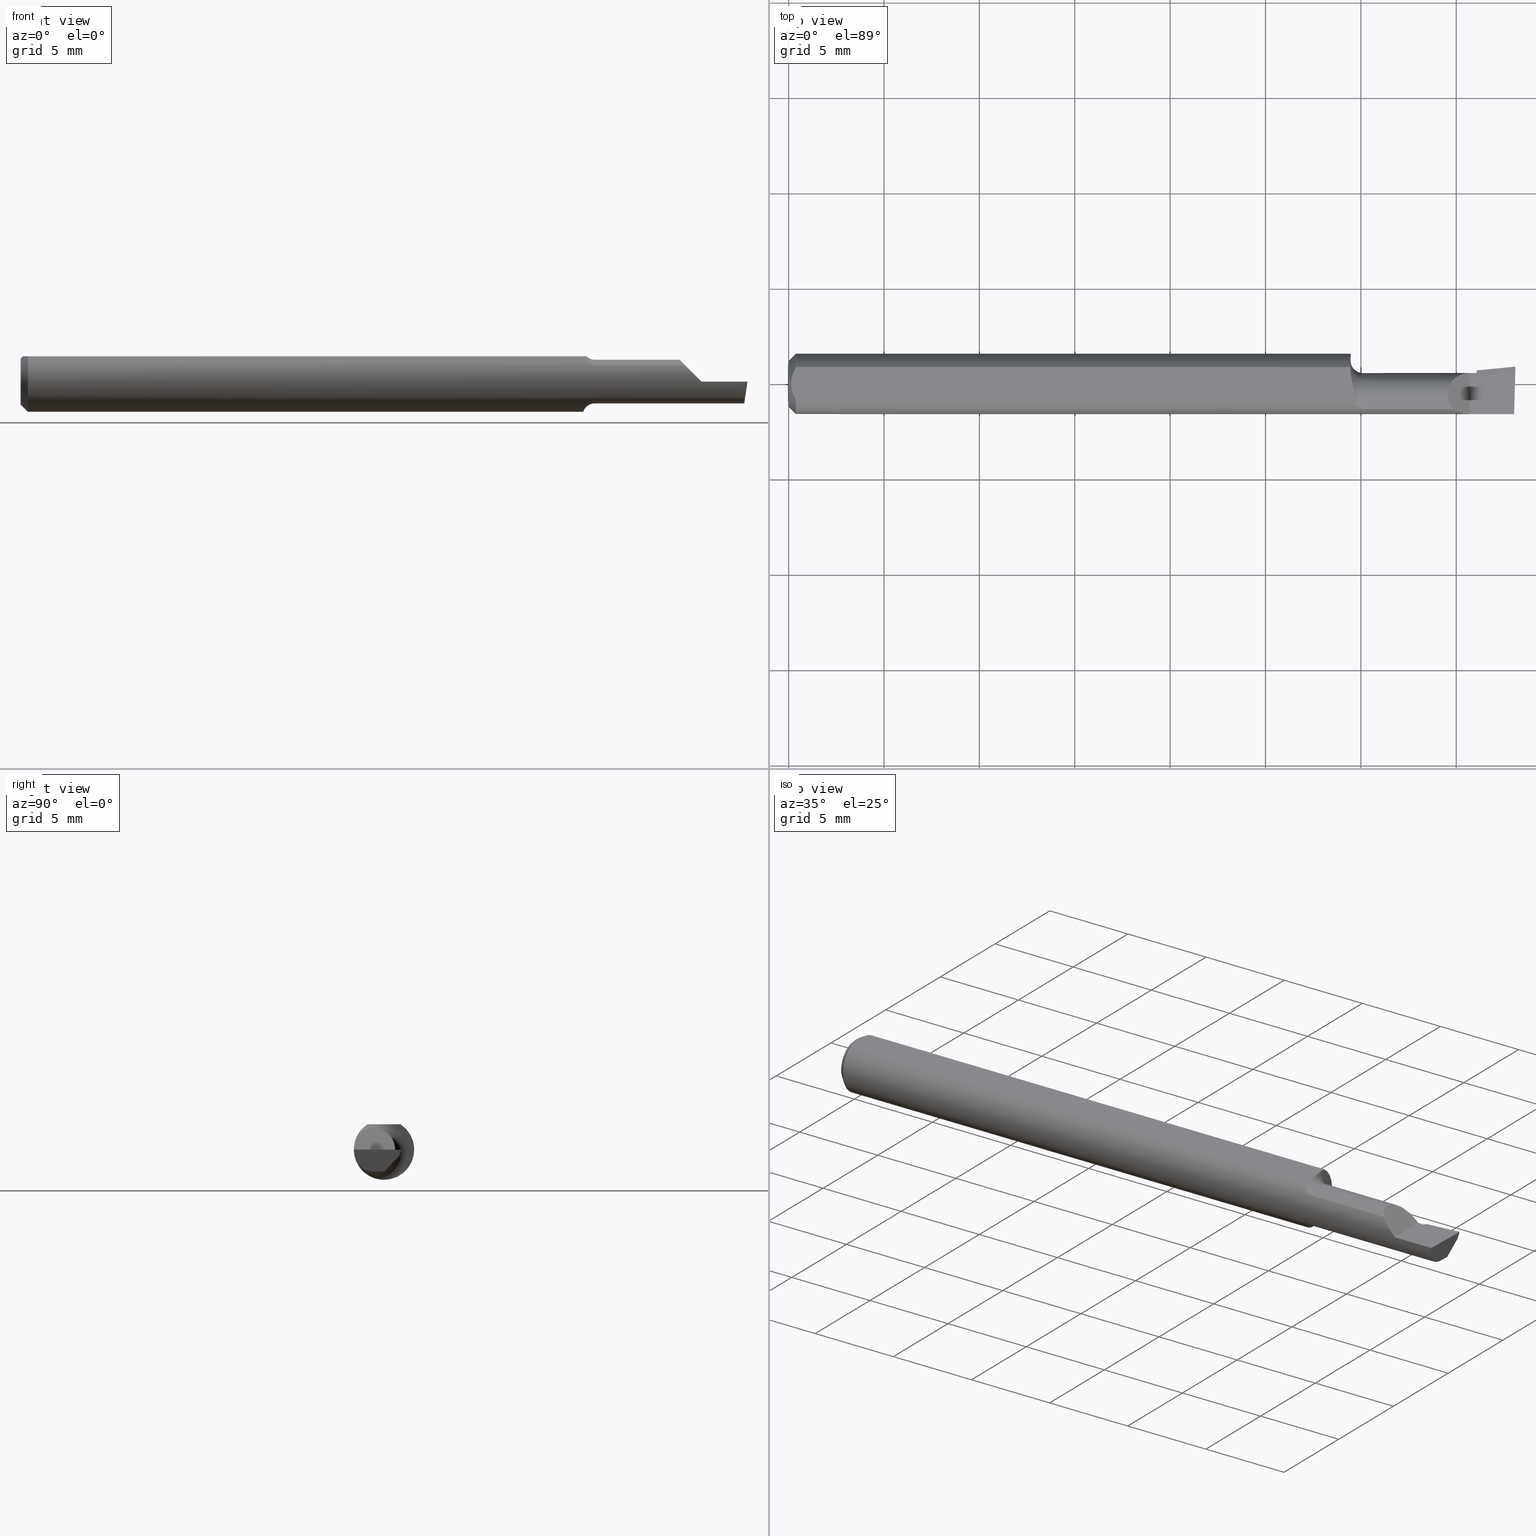
[diagram: canonical four-view strip — front | top / right | iso, engineering-drawing reading convention]
A machine part, canonical four-view strip (front | top / right | iso — engineering-drawing reading convention). The complete STEP part file that produces these views, byte-faithful:
ISO-10303-21;
HEADER;
FILE_DESCRIPTION (( 'STEP AP214' ),
    '1' );
FILE_NAME ('B100300.STEP',
    '2019-07-25T17:04:54',
    ( '' ),
    ( '' ),
    'SwSTEP 2.0',
    'SolidWorks 2018',
    '' );
FILE_SCHEMA (( 'AUTOMOTIVE_DESIGN' ));
ENDSEC;

DATA;
#1 = LINE ( 'NONE', #151, #596 ) ;
#2 = PRODUCT ( 'B100300', 'B100300', '', ( #532 ) ) ;
#3 = VECTOR ( 'NONE', #217, 39.37007874015748143 ) ;
#4 = CARTESIAN_POINT ( 'NONE',  ( 1.493589448587071988, -0.05267366071428577351, -0.03336177403790612644 ) ) ;
#5 = CARTESIAN_POINT ( 'NONE',  ( 1.160000000000000142, 0.02414546164772669867, 0.05235000000000000070 ) ) ;
#6 = ORIENTED_EDGE ( 'NONE', *, *, #296, .T. ) ;
#7 = CARTESIAN_POINT ( 'NONE',  ( 1.175661082963681769, -0.04915643512136030902, 0.03841395140597858582 ) ) ;
#8 = CARTESIAN_POINT ( 'NONE',  ( 0.01500000000000000465, 0.0000000000000000000, 0.0000000000000000000 ) ) ;
#9 = LINE ( 'NONE', #185, #73 ) ;
#10 = CARTESIAN_POINT ( 'NONE',  ( 0.0000000000000000000, 0.0000000000000000000, -0.04734999999999965625 ) ) ;
#11 =( LENGTH_UNIT ( ) NAMED_UNIT ( * ) SI_UNIT ( $, .METRE. ) );
#12 = CARTESIAN_POINT ( 'NONE',  ( 1.174327038483182095, -0.04799382633214954036, -0.03989142061000432171 ) ) ;
#13 = EDGE_CURVE ( 'NONE', #46, #467, #130, .T. ) ;
#14 = SURFACE_SIDE_STYLE ('',( #514 ) ) ;
#15 = ORIENTED_EDGE ( 'NONE', *, *, #246, .T. ) ;
#16 =( CONVERSION_BASED_UNIT ( 'INCH', #35 ) LENGTH_UNIT ( ) NAMED_UNIT ( #268 ) );
#17 = VECTOR ( 'NONE', #312, 39.37007874015748143 ) ;
#18 = CARTESIAN_POINT ( 'NONE',  ( 1.490592351376191838, -0.04680632761517490581, -0.05901368851803156373 ) ) ;
#19 = CARTESIAN_POINT ( 'NONE',  ( 1.500000000000000222, -0.02239999999999999630, -0.04504999999999998589 ) ) ;
#20 = MECHANICAL_DESIGN_GEOMETRIC_PRESENTATION_REPRESENTATION (  '', ( #117 ), #274 ) ;
#21 = ORIENTED_EDGE ( 'NONE', *, *, #202, .T. ) ;
#22 = DIRECTION ( 'NONE',  ( 2.429359850419095604E-34, 4.268512490100411895E-17, 1.000000000000000000 ) ) ;
#23 = ORIENTED_EDGE ( 'NONE', *, *, #540, .T. ) ;
#24 = EDGE_LOOP ( 'NONE', ( #37, #283, #106, #363, #483, #192, #440, #28, #354, #132 ) ) ;
#25 = PLANE ( 'NONE',  #360 ) ;
#26 = LINE ( 'NONE', #356, #385 ) ;
#27 = PLANE ( 'NONE',  #451 ) ;
#28 = ORIENTED_EDGE ( 'NONE', *, *, #43, .F. ) ;
#29 =( BOUNDED_CURVE ( )  B_SPLINE_CURVE ( 3, ( #94, #462, #460, #183 ),
 .UNSPECIFIED., .F., .T. ) 
 B_SPLINE_CURVE_WITH_KNOTS ( ( 4, 4 ),
 ( 5.546277306536651963, 7.853981633974482790 ),
 .UNSPECIFIED. ) 
 CURVE ( )  GEOMETRIC_REPRESENTATION_ITEM ( )  RATIONAL_B_SPLINE_CURVE ( ( 1.000000000000000000, 0.6033122017619988453, 0.6033122017619988453, 1.000000000000000000 ) ) 
 REPRESENTATION_ITEM ( '' )  );
#30 = ORIENTED_EDGE ( 'NONE', *, *, #393, .F. ) ;
#31 = DIRECTION ( 'NONE',  ( 0.9953961983671786307, 0.09584575252022466130, -1.219008768213809603E-16 ) ) ;
#32 = FACE_OUTER_BOUND ( 'NONE', #85, .T. ) ;
#33 = EDGE_CURVE ( 'NONE', #56, #489, #148, .T. ) ;
#34 = CARTESIAN_POINT ( 'NONE',  ( 0.004999999999989931769, 7.898418181085889318E-16, 0.05235000000000000070 ) ) ;
#35 = LENGTH_MEASURE_WITH_UNIT ( LENGTH_MEASURE( 0.02539999999999999897 ), #11 );
#36 = EDGE_CURVE ( 'NONE', #204, #113, #50, .T. ) ;
#37 = ORIENTED_EDGE ( 'NONE', *, *, #321, .F. ) ;
#38 =( GEOMETRIC_REPRESENTATION_CONTEXT ( 3 ) GLOBAL_UNCERTAINTY_ASSIGNED_CONTEXT ( ( #403 ) ) GLOBAL_UNIT_ASSIGNED_CONTEXT ( ( #97, #419, #344 ) ) REPRESENTATION_CONTEXT ( 'NONE', 'WORKASPACE' ) );
#39 = ORIENTED_EDGE ( 'NONE', *, *, #269, .F. ) ;
#40 = ORIENTED_EDGE ( 'NONE', *, *, #506, .T. ) ;
#41 = DIRECTION ( 'NONE',  ( 5.691349986800549142E-18, -1.000000000000000000, 0.0000000000000000000 ) ) ;
#42 = DIRECTION ( 'NONE',  ( -0.7071067811865516806, 0.0000000000000000000, 0.7071067811865431318 ) ) ;
#43 = EDGE_CURVE ( 'NONE', #467, #46, #593, .T. ) ;
#44 = VERTEX_POINT ( 'NONE', #60 ) ;
#45 = CARTESIAN_POINT ( 'NONE',  ( 1.405000000000000249, -0.2500000000000000555, 1.163414459189985436E-17 ) ) ;
#46 = VERTEX_POINT ( 'NONE', #49 ) ;
#47 = SHAPE_DEFINITION_REPRESENTATION ( #256, #535 ) ;
#48 = CARTESIAN_POINT ( 'NONE',  ( 1.420000000000000151, -0.02239999999999999630, 0.0000000000000000000 ) ) ;
#49 = CARTESIAN_POINT ( 'NONE',  ( 1.420000000000000151, 0.01811171944543688711, -0.01970540757188768421 ) ) ;
#50 =( BOUNDED_CURVE ( )  B_SPLINE_CURVE ( 3, ( #370, #379, #278, #373 ),
 .UNSPECIFIED., .F., .T. ) 
 B_SPLINE_CURVE_WITH_KNOTS ( ( 4, 4 ),
 ( 4.712388980384689674, 5.276982613231239405 ),
 .UNSPECIFIED. ) 
 CURVE ( )  GEOMETRIC_REPRESENTATION_ITEM ( )  RATIONAL_B_SPLINE_CURVE ( ( 1.000000000000000000, 0.9736121104788257874, 0.9736121104788257874, 1.000000000000000000 ) ) 
 REPRESENTATION_ITEM ( '' )  );
#51 =( LENGTH_UNIT ( ) NAMED_UNIT ( * ) SI_UNIT ( $, .METRE. ) );
#52 = CARTESIAN_POINT ( 'NONE',  ( 1.420000000000000151, -0.02239999999999999630, 0.0000000000000000000 ) ) ;
#53 = CARTESIAN_POINT ( 'NONE',  ( 1.167873522747513881, -0.03849383661596394307, 0.04935695859860204926 ) ) ;
#54 = VECTOR ( 'NONE', #395, 39.37007874015748143 ) ;
#55 = ORIENTED_EDGE ( 'NONE', *, *, #497, .F. ) ;
#56 = VERTEX_POINT ( 'NONE', #5 ) ;
#57 = AXIS2_PLACEMENT_3D ( 'NONE', #516, #436, #245 ) ;
#58 = DIRECTION ( 'NONE',  ( -0.9953961983671800740, -0.09584575252021031166, 0.0000000000000000000 ) ) ;
#59 = ADVANCED_FACE ( 'NONE', ( #118 ), #243, .T. ) ;
#60 = CARTESIAN_POINT ( 'NONE',  ( 1.498163195397628211, 0.03117310982593861704, -0.01400000000000000376 ) ) ;
#61 = LINE ( 'NONE', #329, #176 ) ;
#62 = EDGE_CURVE ( 'NONE', #113, #563, #29, .T. ) ;
#63 = DIRECTION ( 'NONE',  ( 3.962974135542376561E-18, -0.6963153109074922131, -0.7177360153954949196 ) ) ;
#64 = CARTESIAN_POINT ( 'NONE',  ( 1.169899083742320656, -0.04251446938472878273, 0.04588310374207921899 ) ) ;
#65 = DIRECTION ( 'NONE',  ( 0.02617694830784732946, 0.9996573249755579260, -3.158139334220721443E-18 ) ) ;
#66 = CARTESIAN_POINT ( 'NONE',  ( 1.185000000000000275, -0.05267366071428582902, -0.03336177403790607787 ) ) ;
#67 = APPLICATION_CONTEXT ( 'automotive_design' ) ;
#68 = VECTOR ( 'NONE', #270, 39.37007874015748143 ) ;
#69 = CARTESIAN_POINT ( 'NONE',  ( 1.177568494155622814, -0.05043275970182651419, -0.03668598949093547501 ) ) ;
#70 = CARTESIAN_POINT ( 'NONE',  ( 1.302500000000000213, -0.05267366071428577351, -0.03336177403790612644 ) ) ;
#71 = VERTEX_POINT ( 'NONE', #519 ) ;
#72 = EDGE_LOOP ( 'NONE', ( #228, #447, #147, #332, #475, #55 ) ) ;
#73 = VECTOR ( 'NONE', #372, 39.37007874015748854 ) ;
#74 = CARTESIAN_POINT ( 'NONE',  ( 1.160000000000000142, 0.0000000000000000000, 0.0000000000000000000 ) ) ;
#75 = CARTESIAN_POINT ( 'NONE',  ( 0.01500000000000000465, 0.0000000000000000000, 0.0000000000000000000 ) ) ;
#76 = CONICAL_SURFACE ( 'NONE', #145, 0.06235000000000000264, 0.7853981633974594923 ) ;
#77 = ORIENTED_EDGE ( 'NONE', *, *, #407, .T. ) ;
#78 = EDGE_CURVE ( 'NONE', #544, #533, #437, .T. ) ;
#79 = CARTESIAN_POINT ( 'NONE',  ( 1.160000000000000142, 0.03386738844375224156, 0.05235000000000000070 ) ) ;
#80 = FACE_OUTER_BOUND ( 'NONE', #170, .T. ) ;
#81 = CARTESIAN_POINT ( 'NONE',  ( 1.493589448587071988, -0.05267366071428577351, -0.03336177403790612644 ) ) ;
#82 = PRESENTATION_LAYER_ASSIGNMENT (  '', '', ( #582 ) ) ;
#83 = LINE ( 'NONE', #573, #163 ) ;
#84 = EDGE_LOOP ( 'NONE', ( #458, #362, #281, #286, #496, #523 ) ) ;
#85 = EDGE_LOOP ( 'NONE', ( #423, #397, #103, #554, #158, #469 ) ) ;
#86 = CARTESIAN_POINT ( 'NONE',  ( 1.493589448587071988, -0.05267366071428577351, -0.03336177403790612644 ) ) ;
#87 = CARTESIAN_POINT ( 'NONE',  ( 1.420000000000000151, 0.02364685013702385111, -0.01400000000000000376 ) ) ;
#88 = DIRECTION ( 'NONE',  ( -1.000000000000000000, -5.691349986800549142E-18, -0.0000000000000000000 ) ) ;
#89 = ADVANCED_FACE ( 'NONE', ( #251 ), #140, .F. ) ;
#90 = EDGE_LOOP ( 'NONE', ( #205, #531, #476, #561, #301 ) ) ;
#91 = EDGE_CURVE ( 'NONE', #569, #398, #551, .T. ) ;
#92 = CARTESIAN_POINT ( 'NONE',  ( 0.0000000000000000000, 0.0000000000000000000, 0.0000000000000000000 ) ) ;
#93 = DIRECTION ( 'NONE',  ( 0.7071067811865395791, 8.659560562355030233E-17, 0.7071067811865554553 ) ) ;
#94 = CARTESIAN_POINT ( 'NONE',  ( 1.371638225962093838, -0.05267366071428578739, 0.03336177403790611951 ) ) ;
#95 = CONICAL_SURFACE ( 'NONE', #255, 0.06235000000000000264, 0.7853981633974594923 ) ;
#96 = ORIENTED_EDGE ( 'NONE', *, *, #91, .T. ) ;
#97 =( CONVERSION_BASED_UNIT ( 'INCH', #364 ) LENGTH_UNIT ( ) NAMED_UNIT ( #580 ) );
#98 = CLOSED_SHELL ( 'NONE', ( #221, #316, #426, #224, #59, #271, #234, #456, #89, #101, #381, #284, #276, #463, #499, #509, #187 ) ) ;
#99 = B_SPLINE_CURVE_WITH_KNOTS ( 'NONE', 3,
 ( #331, #53, #64, #141, #7, #564, #231, #562, #459, #282 ),
 .UNSPECIFIED., .F., .F.,
 ( 4, 2, 2, 2, 4 ),
 ( 3.797231421928799144E-07, 0.0004333373953855902639, 0.0006498162315072863234, 0.0007580556495681309379, 0.0008662950676289754440 ),
 .UNSPECIFIED. ) ;
#100 = EDGE_CURVE ( 'NONE', #563, #111, #317, .T. ) ;
#101 = ADVANCED_FACE ( 'NONE', ( #404 ), #95, .T. ) ;
#102 = CARTESIAN_POINT ( 'NONE',  ( 1.495973035530413275, -0.06234999999999998183, -0.01189272970908758151 ) ) ;
#103 = ORIENTED_EDGE ( 'NONE', *, *, #241, .F. ) ;
#104 = DIRECTION ( 'NONE',  ( 0.1219104985252536522, 0.0000000000000000000, 0.9925410975618713660 ) ) ;
#105 = AXIS2_PLACEMENT_3D ( 'NONE', #254, #439, #583 ) ;
#106 = ORIENTED_EDGE ( 'NONE', *, *, #557, .F. ) ;
#107 = CARTESIAN_POINT ( 'NONE',  ( 0.004999999999989931769, 7.898418181085889318E-16, 0.05235000000000000070 ) ) ;
#108 = CARTESIAN_POINT ( 'NONE',  ( -2.563953169053420290E-19, 0.02264999999999996183, 1.836970198721030427E-16 ) ) ;
#109 = AXIS2_PLACEMENT_3D ( 'NONE', #92, #418, #391 ) ;
#110 = FACE_OUTER_BOUND ( 'NONE', #307, .T. ) ;
#111 = VERTEX_POINT ( 'NONE', #477 ) ;
#112 = DIRECTION ( 'NONE',  ( 1.000000000000000000, 0.0000000000000000000, 0.0000000000000000000 ) ) ;
#113 = VERTEX_POINT ( 'NONE', #471 ) ;
#114 = APPLICATION_PROTOCOL_DEFINITION ( 'draft international standard', 'automotive_design', 1998, #67 ) ;
#115 = VECTOR ( 'NONE', #600, 39.37007874015748143 ) ;
#116 = DIRECTION ( 'NONE',  ( -1.000000000000000000, 5.691349986800548372E-18, -0.0000000000000000000 ) ) ;
#117 = STYLED_ITEM ( 'NONE', ( #389 ), #135 ) ;
#118 = FACE_OUTER_BOUND ( 'NONE', #259, .T. ) ;
#119 = EDGE_CURVE ( 'NONE', #56, #398, #502, .T. ) ;
#120 = DIRECTION ( 'NONE',  ( -1.000000000000000000, 0.0000000000000000000, 1.224646799147353947E-16 ) ) ;
#121 = DIRECTION ( 'NONE',  ( -1.000000000000000000, -0.0000000000000000000, -0.0000000000000000000 ) ) ;
#122 = DIRECTION ( 'NONE',  ( -5.691349986800549142E-18, 1.000000000000000000, 0.0000000000000000000 ) ) ;
#123 = AXIS2_PLACEMENT_3D ( 'NONE', #186, #465, #565 ) ;
#124 = DIRECTION ( 'NONE',  ( 1.000000000000000000, 5.691349986800549142E-18, 0.0000000000000000000 ) ) ;
#125 = EDGE_CURVE ( 'NONE', #111, #46, #273, .T. ) ;
#126 = CARTESIAN_POINT ( 'NONE',  ( 1.160000000000000142, 0.01155624999999991728, -0.06126969549408176757 ) ) ;
#127 = LINE ( 'NONE', #165, #17 ) ;
#128 = DIRECTION ( 'NONE',  ( -1.000000000000000000, -0.0000000000000000000, -0.0000000000000000000 ) ) ;
#129 = FACE_OUTER_BOUND ( 'NONE', #570, .T. ) ;
#130 = LINE ( 'NONE', #237, #480 ) ;
#131 = DIRECTION ( 'NONE',  ( -1.000000000000000000, -5.691349986800549142E-18, 0.0000000000000000000 ) ) ;
#132 = ORIENTED_EDGE ( 'NONE', *, *, #260, .F. ) ;
#133 = AXIS2_PLACEMENT_3D ( 'NONE', #346, #22, #581 ) ;
#134 = CARTESIAN_POINT ( 'NONE',  ( 1.420000000000000151, -0.001476535193822992769, -0.03989625446711344420 ) ) ;
#135 = MANIFOLD_SOLID_BREP ( 'Extrude7', #98 ) ;
#136 = CIRCLE ( 'NONE', #105, 0.06235000000000000264 ) ;
#137 = ORIENTED_EDGE ( 'NONE', *, *, #150, .F. ) ;
#138 = ORIENTED_EDGE ( 'NONE', *, *, #351, .F. ) ;
#139 = PLANE ( 'NONE',  #305 ) ;
#140 = PLANE ( 'NONE',  #57 ) ;
#141 = CARTESIAN_POINT ( 'NONE',  ( 1.174073837407041854, -0.04761084945882104735, 0.04033650601908238265 ) ) ;
#142 = DIRECTION ( 'NONE',  ( 0.0000000000000000000, -1.000000000000000000, 1.776356839400250465E-15 ) ) ;
#143 = CARTESIAN_POINT ( 'NONE',  ( 1.162747134522028158, 0.004017454403653755550, 0.05235000000000000070 ) ) ;
#144 = UNCERTAINTY_MEASURE_WITH_UNIT (LENGTH_MEASURE( 1.000000000000000082E-05 ), #521, 'distance_accuracy_value', 'NONE');
#145 = AXIS2_PLACEMENT_3D ( 'NONE', #193, #302, #203 ) ;
#146 = EDGE_LOOP ( 'NONE', ( #213, #578 ) ) ;
#147 = ORIENTED_EDGE ( 'NONE', *, *, #296, .F. ) ;
#148 = B_SPLINE_CURVE_WITH_KNOTS ( 'NONE', 3,
 ( #375, #424, #229, #325, #143, #285, #236, #508, #455, #511, #179, #602, #559, #328 ),
 .UNSPECIFIED., .F., .F.,
 ( 4, 2, 2, 2, 2, 2, 4 ),
 ( 0.008234143088603517943, 0.008591734916881399106, 0.008770530831020339688, 0.008859928788089808244, 0.008949326745159276800, 0.009306918573437151024, 0.009664510401715023513 ),
 .UNSPECIFIED. ) ;
#149 = CARTESIAN_POINT ( 'NONE',  ( 1.181592203943254704, -0.05228879390856551457, -0.03397671269166903374 ) ) ;
#150 = EDGE_CURVE ( 'NONE', #515, #161, #83, .T. ) ;
#151 = CARTESIAN_POINT ( 'NONE',  ( 1.492951399889240971, -0.02221542591032727235, -0.04504999999999998589 ) ) ;
#152 = CARTESIAN_POINT ( 'NONE',  ( 0.0000000000000000000, 0.03386738844375223462, 0.05234999999999997988 ) ) ;
#153 = VECTOR ( 'NONE', #304, 39.37007874015748854 ) ;
#154 = EDGE_LOOP ( 'NONE', ( #15, #422, #410 ) ) ;
#155 = CARTESIAN_POINT ( 'NONE',  ( 1.172612635401776959, -0.04600867268841644236, -0.04219264322731255262 ) ) ;
#156 = CARTESIAN_POINT ( 'NONE',  ( 0.009678036133109307534, -0.02325481837211496039, 0.05235000000000000070 ) ) ;
#157 = DIRECTION ( 'NONE',  ( 1.000000000000000000, 0.0000000000000000000, 0.0000000000000000000 ) ) ;
#158 = ORIENTED_EDGE ( 'NONE', *, *, #540, .F. ) ;
#159 = DIRECTION ( 'NONE',  ( -1.000000000000000000, -5.691349986800549142E-18, -0.0000000000000000000 ) ) ;
#160 = VERTEX_POINT ( 'NONE', #434 ) ;
#161 = VERTEX_POINT ( 'NONE', #387 ) ;
#162 = FACE_OUTER_BOUND ( 'NONE', #174, .T. ) ;
#163 = VECTOR ( 'NONE', #65, 39.37007874015748854 ) ;
#164 = CARTESIAN_POINT ( 'NONE',  ( 0.01500000000000185039, -0.03386738844380016850, 0.05235000000000000070 ) ) ;
#165 = CARTESIAN_POINT ( 'NONE',  ( 0.01500000000000000465, 0.0000000000000000000, -0.06235000000000000264 ) ) ;
#166 = CARTESIAN_POINT ( 'NONE',  ( 2.249639673992788601E-32, -0.06234999999999999570, 1.836970198721030427E-16 ) ) ;
#167 = FACE_OUTER_BOUND ( 'NONE', #154, .T. ) ;
#168 = DIRECTION ( 'NONE',  ( 5.691349986800549142E-18, -1.000000000000000000, 7.598598113218357399E-17 ) ) ;
#169 = ORIENTED_EDGE ( 'NONE', *, *, #78, .F. ) ;
#170 = EDGE_LOOP ( 'NONE', ( #591, #457, #235 ) ) ;
#171 = AXIS2_PLACEMENT_3D ( 'NONE', #194, #394, #428 ) ;
#172 = CARTESIAN_POINT ( 'NONE',  ( 1.497433779686218935, -0.06235000000000005121, 3.231995301756471648E-19 ) ) ;
#173 = CARTESIAN_POINT ( 'NONE',  ( 1.420000000000000151, 0.02794687614419681318, 0.0000000000000000000 ) ) ;
#174 = EDGE_LOOP ( 'NONE', ( #96, #342, #341, #294, #576 ) ) ;
#175 = CARTESIAN_POINT ( 'NONE',  ( 0.0000000000000000000, 6.717187693324806899E-18, 0.04734999999999965625 ) ) ;
#176 = VECTOR ( 'NONE', #58, 39.37007874015748854 ) ;
#177 = CARTESIAN_POINT ( 'NONE',  ( 1.420000000000000151, 0.02794687614419804830, 1.856802933193678953E-16 ) ) ;
#178 = PLANE ( 'NONE',  #326 ) ;
#179 = CARTESIAN_POINT ( 'NONE',  ( 1.167029704074272312, -0.01497150789875726501, 0.05235000000000000764 ) ) ;
#180 = EDGE_CURVE ( 'NONE', #533, #544, #212, .T. ) ;
#181 = CIRCLE ( 'NONE', #200, 0.06235000000000000264 ) ;
#182 = EDGE_LOOP ( 'NONE', ( #369, #392 ) ) ;
#183 = CARTESIAN_POINT ( 'NONE',  ( 1.405000000000000249, 0.02264999999999992714, 1.163414459189985436E-17 ) ) ;
#184 = ORIENTED_EDGE ( 'NONE', *, *, #321, .T. ) ;
#185 = CARTESIAN_POINT ( 'NONE',  ( 1.500188977433808635, 0.03611059946466779746, 0.001440373173037756650 ) ) ;
#186 = CARTESIAN_POINT ( 'NONE',  ( 0.0000000000000000000, 0.0000000000000000000, 0.0000000000000000000 ) ) ;
#187 = ADVANCED_FACE ( 'NONE', ( #339 ), #577, .F. ) ;
#188 =( LENGTH_UNIT ( ) NAMED_UNIT ( * ) SI_UNIT ( $, .METRE. ) );
#189 = CARTESIAN_POINT ( 'NONE',  ( 1.165988988117221625, -0.03406974560157226273, -0.05264335079965581921 ) ) ;
#190 = LINE ( 'NONE', #152, #226 ) ;
#191 = DIRECTION ( 'NONE',  ( 3.962974135542376561E-18, -0.6963153109074922131, -0.7177360153954949196 ) ) ;
#192 = ORIENTED_EDGE ( 'NONE', *, *, #100, .T. ) ;
#193 = CARTESIAN_POINT ( 'NONE',  ( 0.01500000000000000465, 0.0000000000000000000, 0.0000000000000000000 ) ) ;
#194 = CARTESIAN_POINT ( 'NONE',  ( 1.420000000000000151, -0.02239999999999999630, 0.0000000000000000000 ) ) ;
#195 = PRODUCT_DEFINITION_CONTEXT ( 'detailed design', #67, 'design' ) ;
#196 = VERTEX_POINT ( 'NONE', #107 ) ;
#197 = DIRECTION ( 'NONE',  ( 0.0000000000000000000, 0.0000000000000000000, 1.000000000000000000 ) ) ;
#198 = CARTESIAN_POINT ( 'NONE',  ( 0.004999999999998879473, -0.005957634400466955450, 0.05235000000000000070 ) ) ;
#199 = DIRECTION ( 'NONE',  ( 0.0000000000000000000, 1.000000000000000000, -7.598598113218357399E-17 ) ) ;
#200 = AXIS2_PLACEMENT_3D ( 'NONE', #75, #121, #308 ) ;
#201 = CARTESIAN_POINT ( 'NONE',  ( 1.500000000000000222, -0.2500000000000000555, 0.0000000000000000000 ) ) ;
#202 = EDGE_CURVE ( 'NONE', #219, #409, #190, .T. ) ;
#203 = DIRECTION ( 'NONE',  ( 0.0000000000000000000, 0.0000000000000000000, -1.000000000000000000 ) ) ;
#204 = VERTEX_POINT ( 'NONE', #572 ) ;
#205 = ORIENTED_EDGE ( 'NONE', *, *, #474, .F. ) ;
#206 = VECTOR ( 'NONE', #558, 39.37007874015748143 ) ;
#207 = CARTESIAN_POINT ( 'NONE',  ( 1.420000000000000151, -0.006476468102432207663, -0.04504999999999998589 ) ) ;
#208 = VECTOR ( 'NONE', #128, 39.37007874015748143 ) ;
#209 = EDGE_CURVE ( 'NONE', #219, #448, #136, .T. ) ;
#210 = CARTESIAN_POINT ( 'NONE',  ( 1.492946566646605078, -0.02239999999999999630, -0.04504999999999998589 ) ) ;
#211 = DIRECTION ( 'NONE',  ( 5.691349986800549142E-18, -1.000000000000000000, 0.0000000000000000000 ) ) ;
#212 = CIRCLE ( 'NONE', #492, 0.04734999999999965625 ) ;
#213 = ORIENTED_EDGE ( 'NONE', *, *, #180, .T. ) ;
#214 = CARTESIAN_POINT ( 'NONE',  ( 0.006064493299689842180, 0.01189382783781397189, 0.05235000000000000070 ) ) ;
#215 = LINE ( 'NONE', #417, #206 ) ;
#216 = CARTESIAN_POINT ( 'NONE',  ( 1.185000000000000275, -0.02239999999999999630, 0.0000000000000000000 ) ) ;
#217 = DIRECTION ( 'NONE',  ( 1.000000000000000000, 5.691349986800549142E-18, 0.0000000000000000000 ) ) ;
#218 = B_SPLINE_CURVE_WITH_KNOTS ( 'NONE', 3,
 ( #34, #450, #214, #257, #313, #359 ),
 .UNSPECIFIED., .F., .F.,
 ( 4, 2, 4 ),
 ( 0.003037199019464981685, 0.003488061124369676216, 0.003938923229274370746 ),
 .UNSPECIFIED. ) ;
#219 = VERTEX_POINT ( 'NONE', #247 ) ;
#220 = VERTEX_POINT ( 'NONE', #207 ) ;
#221 = ADVANCED_FACE ( 'NONE', ( #110 ), #76, .T. ) ;
#222 = CARTESIAN_POINT ( 'NONE',  ( 0.01500000000000000465, 0.0000000000000000000, -0.06235000000000000264 ) ) ;
#223 = CARTESIAN_POINT ( 'NONE',  ( 1.420000000000000151, -0.2500000000000000555, 9.797174393178828616E-18 ) ) ;
#224 = ADVANCED_FACE ( 'NONE', ( #560 ), #479, .F. ) ;
#225 = CARTESIAN_POINT ( 'NONE',  ( 1.420000000000000151, 0.02794687614419681318, 0.0000000000000000000 ) ) ;
#226 = VECTOR ( 'NONE', #470, 39.37007874015748143 ) ;
#227 = ORIENTED_EDGE ( 'NONE', *, *, #334, .T. ) ;
#228 = ORIENTED_EDGE ( 'NONE', *, *, #334, .F. ) ;
#229 = CARTESIAN_POINT ( 'NONE',  ( 1.160684336333183353, 0.01400540109987314513, 0.05234999999999997294 ) ) ;
#230 = AXIS2_PLACEMENT_3D ( 'NONE', #225, #556, #594 ) ;
#231 = CARTESIAN_POINT ( 'NONE',  ( 1.179654899318486549, -0.05157034440792585689, 0.03505133412385300767 ) ) ;
#232 = LINE ( 'NONE', #445, #547 ) ;
#233 = DIRECTION ( 'NONE',  ( 1.000000000000000000, 5.691349986800549142E-18, 0.0000000000000000000 ) ) ;
#234 = ADVANCED_FACE ( 'NONE', ( #488 ), #300, .F. ) ;
#235 = ORIENTED_EDGE ( 'NONE', *, *, #497, .T. ) ;
#236 = CARTESIAN_POINT ( 'NONE',  ( 1.163943373083575095, -0.0009488278625736960240, 0.05235000000000000070 ) ) ;
#237 = CARTESIAN_POINT ( 'NONE',  ( 1.420000000000000151, 0.003839959974368483461, -0.03441620828959359585 ) ) ;
#238 = SURFACE_STYLE_FILL_AREA ( #571 ) ;
#239 = FILL_AREA_STYLE ('',( #343 ) ) ;
#240 = FILL_AREA_STYLE_COLOUR ( '', #498 ) ;
#241 = EDGE_CURVE ( 'NONE', #467, #220, #292, .T. ) ;
#242 = PRESENTATION_LAYER_ASSIGNMENT (  '', '', ( #117 ) ) ;
#243 = CYLINDRICAL_SURFACE ( 'NONE', #123, 0.06235000000000000264 ) ;
#244 = ORIENTED_EDGE ( 'NONE', *, *, #209, .F. ) ;
#245 = DIRECTION ( 'NONE',  ( 0.0000000000000000000, 0.0000000000000000000, -1.000000000000000000 ) ) ;
#246 = EDGE_CURVE ( 'NONE', #398, #409, #396, .T. ) ;
#247 = CARTESIAN_POINT ( 'NONE',  ( 0.01500000000000000465, 0.03386738844375223462, 0.05234999999999997988 ) ) ;
#248 = VECTOR ( 'NONE', #168, 39.37007874015748143 ) ;
#249 = EDGE_CURVE ( 'NONE', #318, #196, #371, .T. ) ;
#250 = CARTESIAN_POINT ( 'NONE',  ( 1.160000000000000142, 0.04764999999999997016, 0.0000000000000000000 ) ) ;
#251 = FACE_OUTER_BOUND ( 'NONE', #146, .T. ) ;
#252 = EDGE_LOOP ( 'NONE', ( #601, #495, #382, #40 ) ) ;
#253 = CARTESIAN_POINT ( 'NONE',  ( 1.420000000000000151, 0.003839959974368483461, -0.03441620828959359585 ) ) ;
#254 = CARTESIAN_POINT ( 'NONE',  ( 0.01500000000000000465, 0.0000000000000000000, 0.0000000000000000000 ) ) ;
#255 = AXIS2_PLACEMENT_3D ( 'NONE', #8, #112, #290 ) ;
#256 = PRODUCT_DEFINITION_SHAPE ( 'NONE', 'NONE',  #413 ) ;
#257 = CARTESIAN_POINT ( 'NONE',  ( 0.009669996313769784607, 0.02323004575534281385, 0.05234999999999998682 ) ) ;
#258 = ORIENTED_EDGE ( 'NONE', *, *, #279, .F. ) ;
#259 = EDGE_LOOP ( 'NONE', ( #258, #431, #227, #545, #525, #378, #77, #39, #244, #21, #314, #264 ) ) ;
#260 = EDGE_CURVE ( 'NONE', #443, #267, #553, .T. ) ;
#261 = PLANE ( 'NONE',  #549 ) ;
#262 = VECTOR ( 'NONE', #31, 39.37007874015748854 ) ;
#263 = ORIENTED_EDGE ( 'NONE', *, *, #337, .T. ) ;
#264 = ORIENTED_EDGE ( 'NONE', *, *, #91, .F. ) ;
#265 = AXIS2_PLACEMENT_3D ( 'NONE', #295, #528, #524 ) ;
#266 = CARTESIAN_POINT ( 'NONE',  ( 1.492874371667014088, -0.04428776192107811843, -0.04097143695815294584 ) ) ;
#267 = VERTEX_POINT ( 'NONE', #481 ) ;
#268 = DIMENSIONAL_EXPONENTS ( 1.000000000000000000, 0.0000000000000000000, 0.0000000000000000000, 0.0000000000000000000, 0.0000000000000000000, 0.0000000000000000000, 0.0000000000000000000 ) ;
#269 = EDGE_CURVE ( 'NONE', #448, #318, #181, .T. ) ;
#270 = DIRECTION ( 'NONE',  ( -0.0000000000000000000, 1.000000000000000000, -0.0000000000000000000 ) ) ;
#271 = ADVANCED_FACE ( 'NONE', ( #472 ), #25, .F. ) ;
#272 = PLANE ( 'NONE',  #230 ) ;
#273 = CIRCLE ( 'NONE', #171, 0.04504999999999999283 ) ;
#274 =( GEOMETRIC_REPRESENTATION_CONTEXT ( 3 ) GLOBAL_UNCERTAINTY_ASSIGNED_CONTEXT ( ( #501 ) ) GLOBAL_UNIT_ASSIGNED_CONTEXT ( ( #16, #568, #384 ) ) REPRESENTATION_CONTEXT ( 'NONE', 'WORKASPACE' ) );
#275 = CARTESIAN_POINT ( 'NONE',  ( 1.166182189689074944, -0.03386738844375222074, 0.05235000000000000070 ) ) ;
#276 = ADVANCED_FACE ( 'NONE', ( #420 ), #330, .T. ) ;
#277 = PLANE ( 'NONE',  #288 ) ;
#278 = CARTESIAN_POINT ( 'NONE',  ( 1.381685276638327631, -0.05903713403021959572, 0.02331472336167217385 ) ) ;
#279 = EDGE_CURVE ( 'NONE', #355, #569, #353, .T. ) ;
#280 = DIRECTION ( 'NONE',  ( -1.000000000000000000, -5.691349986800549142E-18, -0.0000000000000000000 ) ) ;
#281 = ORIENTED_EDGE ( 'NONE', *, *, #202, .F. ) ;
#282 = CARTESIAN_POINT ( 'NONE',  ( 1.185000000000000275, -0.05267366071428575963, 0.03336177403790613338 ) ) ;
#283 = ORIENTED_EDGE ( 'NONE', *, *, #279, .T. ) ;
#284 = ADVANCED_FACE ( 'NONE', ( #167 ), #27, .T. ) ;
#285 = CARTESIAN_POINT ( 'NONE',  ( 1.163640393495456893, 0.0002918085034138108089, 0.05234999999999998682 ) ) ;
#286 = ORIENTED_EDGE ( 'NONE', *, *, #337, .F. ) ;
#287 = LENGTH_MEASURE_WITH_UNIT ( LENGTH_MEASURE( 0.02539999999999999897 ), #188 );
#288 = AXIS2_PLACEMENT_3D ( 'NONE', #173, #131, #41 ) ;
#289 = DIRECTION ( 'NONE',  ( 0.0000000000000000000, -1.000000000000000000, 0.0000000000000000000 ) ) ;
#290 = DIRECTION ( 'NONE',  ( 0.0000000000000000000, 0.0000000000000000000, -1.000000000000000000 ) ) ;
#291 = SURFACE_SIDE_STYLE ('',( #238 ) ) ;
#292 = LINE ( 'NONE', #253, #153 ) ;
#293 = CARTESIAN_POINT ( 'NONE',  ( 1.178775713346481790, -0.05116520334387895941, -0.03564627526859119599 ) ) ;
#294 = ORIENTED_EDGE ( 'NONE', *, *, #537, .T. ) ;
#295 = CARTESIAN_POINT ( 'NONE',  ( 1.160000000000000142, -0.02239999999999999630, 0.0000000000000000000 ) ) ;
#296 = EDGE_CURVE ( 'NONE', #452, #161, #493, .T. ) ;
#297 = DIRECTION ( 'NONE',  ( -1.000000000000000000, -0.0000000000000000000, -0.0000000000000000000 ) ) ;
#298 = CARTESIAN_POINT ( 'NONE',  ( 1.168132745576696108, -0.03943215935316544268, -0.04868886658133510237 ) ) ;
#299 = COLOUR_RGB ( '',0.7529411764705882248, 0.7529411764705882248, 0.7529411764705882248 ) ;
#300 = PLANE ( 'NONE',  #414 ) ;
#301 = ORIENTED_EDGE ( 'NONE', *, *, #249, .T. ) ;
#302 = DIRECTION ( 'NONE',  ( 1.000000000000000000, 0.0000000000000000000, 0.0000000000000000000 ) ) ;
#303 = EDGE_CURVE ( 'NONE', #409, #56, #377, .T. ) ;
#304 = DIRECTION ( 'NONE',  ( 3.962974135542376561E-18, -0.6963153109074922131, -0.7177360153954949196 ) ) ;
#305 = AXIS2_PLACEMENT_3D ( 'NONE', #322, #361, #598 ) ;
#306 = ORIENTED_EDGE ( 'NONE', *, *, #604, .T. ) ;
#307 = EDGE_LOOP ( 'NONE', ( #169, #315, #263, #517, #138 ) ) ;
#308 = DIRECTION ( 'NONE',  ( 0.0000000000000000000, 0.0000000000000000000, 1.000000000000000000 ) ) ;
#309 = CIRCLE ( 'NONE', #368, 0.04504999999999996507 ) ;
#310 = VECTOR ( 'NONE', #93, 39.37007874015748143 ) ;
#311 = CARTESIAN_POINT ( 'NONE',  ( 1.492946566646605078, -0.02239999999999999630, -0.04504999999999998589 ) ) ;
#312 = DIRECTION ( 'NONE',  ( 0.7071067811865395791, 0.0000000000000000000, -0.7071067811865554553 ) ) ;
#313 = CARTESIAN_POINT ( 'NONE',  ( 0.01218518006020415795, 0.02868529347538067639, 0.05235000000000000070 ) ) ;
#314 = ORIENTED_EDGE ( 'NONE', *, *, #246, .F. ) ;
#315 = ORIENTED_EDGE ( 'NONE', *, *, #474, .T. ) ;
#316 = ADVANCED_FACE ( 'NONE', ( #129 ), #261, .T. ) ;
#317 = LINE ( 'NONE', #108, #543 ) ;
#318 = VERTEX_POINT ( 'NONE', #164 ) ;
#319 = LINE ( 'NONE', #45, #68 ) ;
#320 = PLANE ( 'NONE',  #466 ) ;
#321 = EDGE_CURVE ( 'NONE', #355, #443, #550, .T. ) ;
#322 = CARTESIAN_POINT ( 'NONE',  ( 1.509953961983671267, 0.03660845752520201779, 0.0000000000000000000 ) ) ;
#323 = SURFACE_STYLE_USAGE ( .BOTH. , #291 ) ;
#324 = EDGE_LOOP ( 'NONE', ( #184, #438, #530, #306, #137, #390 ) ) ;
#325 = CARTESIAN_POINT ( 'NONE',  ( 1.162172826817815530, 0.006508548278878179515, 0.05235000000000000070 ) ) ;
#326 = AXIS2_PLACEMENT_3D ( 'NONE', #507, #500, #552 ) ;
#327 = CARTESIAN_POINT ( 'NONE',  ( 1.185000000000000275, -0.05267366071428582902, -0.03336177403790607787 ) ) ;
#328 = CARTESIAN_POINT ( 'NONE',  ( 1.166182189689074944, -0.03386738844375222074, 0.05235000000000000070 ) ) ;
#329 = CARTESIAN_POINT ( 'NONE',  ( 1.510364203804932304, 0.03234793331252790866, -0.01400000000000000376 ) ) ;
#330 = CYLINDRICAL_SURFACE ( 'NONE', #400, 0.04504999999999997201 ) ;
#331 = CARTESIAN_POINT ( 'NONE',  ( 1.166182189689074944, -0.03386738844375222074, 0.05235000000000000070 ) ) ;
#332 = ORIENTED_EDGE ( 'NONE', *, *, #526, .F. ) ;
#333 = VERTEX_POINT ( 'NONE', #87 ) ;
#334 = EDGE_CURVE ( 'NONE', #515, #204, #336, .T. ) ;
#335 = CARTESIAN_POINT ( 'NONE',  ( 1.161648092746324634, -0.01564147840104303244, -0.06074236086770341131 ) ) ;
#336 = LINE ( 'NONE', #166, #208 ) ;
#337 = EDGE_CURVE ( 'NONE', #196, #219, #218, .T. ) ;
#338 = SURFACE_STYLE_USAGE ( .BOTH. , #14 ) ;
#339 = FACE_OUTER_BOUND ( 'NONE', #324, .T. ) ;
#340 = DIRECTION ( 'NONE',  ( 0.0000000000000000000, 0.0000000000000000000, 1.000000000000000000 ) ) ;
#341 = ORIENTED_EDGE ( 'NONE', *, *, #33, .T. ) ;
#342 = ORIENTED_EDGE ( 'NONE', *, *, #119, .F. ) ;
#343 = FILL_AREA_STYLE_COLOUR ( '', #299 ) ;
#344 =( NAMED_UNIT ( * ) SI_UNIT ( $, .STERADIAN. ) SOLID_ANGLE_UNIT ( ) );
#345 = MECHANICAL_DESIGN_GEOMETRIC_PRESENTATION_REPRESENTATION (  '', ( #582 ), #38 ) ;
#346 = CARTESIAN_POINT ( 'NONE',  ( 1.500000000000000222, -0.02239999999999999630, -0.04504999999999998589 ) ) ;
#347 = DIRECTION ( 'NONE',  ( 5.691349986800549913E-18, -1.000000000000000000, 0.0000000000000000000 ) ) ;
#348 = CIRCLE ( 'NONE', #585, 0.04504999999999999283 ) ;
#349 = AXIS2_PLACEMENT_3D ( 'NONE', #216, #487, #211 ) ;
#350 = CARTESIAN_POINT ( 'NONE',  ( 1.492650040401417133, -0.03372388044486963193, -0.04504999999999997201 ) ) ;
#351 = EDGE_CURVE ( 'NONE', #533, #448, #127, .T. ) ;
#352 = CARTESIAN_POINT ( 'NONE',  ( 1.420000000000000151, 0.02794687614419681318, 0.0000000000000000000 ) ) ;
#353 = LINE ( 'NONE', #70, #54 ) ;
#354 = ORIENTED_EDGE ( 'NONE', *, *, #421, .T. ) ;
#355 = VERTEX_POINT ( 'NONE', #86 ) ;
#356 = CARTESIAN_POINT ( 'NONE',  ( 1.420000000000000151, 0.02442187865123204502, -0.01147666661066421706 ) ) ;
#357 = PRESENTATION_STYLE_ASSIGNMENT (( #323 ) ) ;
#358 = EDGE_CURVE ( 'NONE', #160, #113, #491, .T. ) ;
#359 = CARTESIAN_POINT ( 'NONE',  ( 0.01500000000000000465, 0.03386738844375223462, 0.05234999999999997988 ) ) ;
#360 = AXIS2_PLACEMENT_3D ( 'NONE', #539, #401, #199 ) ;
#361 = DIRECTION ( 'NONE',  ( -0.09165774897393338949, 0.9519021185660613282, -0.2923717047227306076 ) ) ;
#362 = ORIENTED_EDGE ( 'NONE', *, *, #303, .F. ) ;
#363 = ORIENTED_EDGE ( 'NONE', *, *, #358, .T. ) ;
#364 = LENGTH_MEASURE_WITH_UNIT ( LENGTH_MEASURE( 0.02539999999999999897 ), #51 );
#365 = CARTESIAN_POINT ( 'NONE',  ( 0.01500000000000000465, 7.635672792683746671E-18, 0.06235000000000000264 ) ) ;
#366 = LINE ( 'NONE', #408, #597 ) ;
#367 = EDGE_CURVE ( 'NONE', #71, #44, #232, .T. ) ;
#368 = AXIS2_PLACEMENT_3D ( 'NONE', #518, #280, #289 ) ;
#369 = ORIENTED_EDGE ( 'NONE', *, *, #43, .T. ) ;
#370 = CARTESIAN_POINT ( 'NONE',  ( 1.405000000000000249, -0.06235000000000005121, 1.163414459189985436E-17 ) ) ;
#371 = B_SPLINE_CURVE_WITH_KNOTS ( 'NONE', 3,
 ( #441, #534, #156, #442, #198, #485 ),
 .UNSPECIFIED., .F., .F.,
 ( 4, 2, 4 ),
 ( 0.002133667072902290657, 0.002585433046183636171, 0.003037199019464981685 ),
 .UNSPECIFIED. ) ;
#372 = DIRECTION ( 'NONE',  ( 0.1240019227988992528, 0.3022330132596629526, 0.9451342385281363834 ) ) ;
#373 = CARTESIAN_POINT ( 'NONE',  ( 1.371638225962093838, -0.05267366071428578739, 0.03336177403790611951 ) ) ;
#374 = CARTESIAN_POINT ( 'NONE',  ( 1.497745910775796441, 0.001009611647418909817, -0.04504999999999998589 ) ) ;
#375 = CARTESIAN_POINT ( 'NONE',  ( 1.160000000000000142, 0.02414546164772669867, 0.05235000000000000070 ) ) ;
#376 =( NAMED_UNIT ( * ) PLANE_ANGLE_UNIT ( ) SI_UNIT ( $, .RADIAN. ) );
#377 = LINE ( 'NONE', #592, #248 ) ;
#378 = ORIENTED_EDGE ( 'NONE', *, *, #537, .F. ) ;
#379 = CARTESIAN_POINT ( 'NONE',  ( 1.393107270290912858, -0.06235000000000000264, 0.01189272970908752079 ) ) ;
#380 = ORIENTED_EDGE ( 'NONE', *, *, #506, .F. ) ;
#381 = ADVANCED_FACE ( 'NONE', ( #162 ), #486, .F. ) ;
#382 = ORIENTED_EDGE ( 'NONE', *, *, #260, .T. ) ;
#383 = DIRECTION ( 'NONE',  ( -0.02617694830784732946, -0.9996573249755579260, 4.246274422243625101E-17 ) ) ;
#384 =( NAMED_UNIT ( * ) SI_UNIT ( $, .STERADIAN. ) SOLID_ANGLE_UNIT ( ) );
#385 = VECTOR ( 'NONE', #588, 39.37007874015748143 ) ;
#386 = CARTESIAN_POINT ( 'NONE',  ( 1.494656860756163885, -0.05903713403021957490, -0.02331472336167223977 ) ) ;
#387 = CARTESIAN_POINT ( 'NONE',  ( 1.500000000000000444, 0.03565000000000801555, 2.612409678550641086E-14 ) ) ;
#388 = CARTESIAN_POINT ( 'NONE',  ( 1.162728993423048252, -0.02215482600002532249, -0.05866202889160989503 ) ) ;
#389 = PRESENTATION_STYLE_ASSIGNMENT (( #338 ) ) ;
#390 = ORIENTED_EDGE ( 'NONE', *, *, #566, .F. ) ;
#391 = DIRECTION ( 'NONE',  ( 0.0000000000000000000, 0.0000000000000000000, 1.000000000000000000 ) ) ;
#392 = ORIENTED_EDGE ( 'NONE', *, *, #13, .T. ) ;
#393 = EDGE_CURVE ( 'NONE', #452, #333, #26, .T. ) ;
#394 = DIRECTION ( 'NONE',  ( -1.000000000000000000, -5.691349986800549142E-18, -0.0000000000000000000 ) ) ;
#395 = DIRECTION ( 'NONE',  ( -1.000000000000000000, -5.691349986800549142E-18, -0.0000000000000000000 ) ) ;
#396 = CIRCLE ( 'NONE', #435, 0.06235000000000000264 ) ;
#397 = ORIENTED_EDGE ( 'NONE', *, *, #587, .T. ) ;
#398 = VERTEX_POINT ( 'NONE', #126 ) ;
#399 = DIRECTION ( 'NONE',  ( 0.0000000000000000000, 1.000000000000000000, 0.0000000000000000000 ) ) ;
#400 = AXIS2_PLACEMENT_3D ( 'NONE', #538, #159, #347 ) ;
#401 = DIRECTION ( 'NONE',  ( 0.0000000000000000000, -7.598598113218357399E-17, -1.000000000000000000 ) ) ;
#402 = AXIS2_PLACEMENT_3D ( 'NONE', #52, #233, #142 ) ;
#403 = UNCERTAINTY_MEASURE_WITH_UNIT (LENGTH_MEASURE( 1.000000000000000082E-05 ), #97, 'distance_accuracy_value', 'NONE');
#404 = FACE_OUTER_BOUND ( 'NONE', #90, .T. ) ;
#405 = DIRECTION ( 'NONE',  ( 0.1053106618241428233, 0.6976485211320180291, 0.7086580314005261894 ) ) ;
#406 = PRODUCT_RELATED_PRODUCT_CATEGORY ( 'part', '', ( #2 ) ) ;
#407 = EDGE_CURVE ( 'NONE', #489, #318, #366, .T. ) ;
#408 = CARTESIAN_POINT ( 'NONE',  ( 0.0000000000000000000, -0.03386738844375222768, 0.05234999999999997988 ) ) ;
#409 = VERTEX_POINT ( 'NONE', #79 ) ;
#410 = ORIENTED_EDGE ( 'NONE', *, *, #119, .T. ) ;
#411 = DIRECTION ( 'NONE',  ( 5.691349986800549142E-18, -1.000000000000000000, 0.0000000000000000000 ) ) ;
#412 = LINE ( 'NONE', #461, #449 ) ;
#413 = PRODUCT_DEFINITION ( 'UNKNOWN', '', #444, #195 ) ;
#414 = AXIS2_PLACEMENT_3D ( 'NONE', #201, #529, #120 ) ;
#415 = CARTESIAN_POINT ( 'NONE',  ( 1.405000000000000249, -0.2500000000000000555, 1.163414459189985436E-17 ) ) ;
#416 = ORIENTED_EDGE ( 'NONE', *, *, #575, .T. ) ;
#417 = CARTESIAN_POINT ( 'NONE',  ( 1.420000000000000151, -0.02239999999999999630, -0.04504999999999998589 ) ) ;
#418 = DIRECTION ( 'NONE',  ( -1.000000000000000000, -0.0000000000000000000, -0.0000000000000000000 ) ) ;
#419 =( NAMED_UNIT ( * ) PLANE_ANGLE_UNIT ( ) SI_UNIT ( $, .RADIAN. ) );
#420 = FACE_OUTER_BOUND ( 'NONE', #24, .T. ) ;
#421 = EDGE_CURVE ( 'NONE', #467, #267, #348, .T. ) ;
#422 = ORIENTED_EDGE ( 'NONE', *, *, #303, .T. ) ;
#423 = ORIENTED_EDGE ( 'NONE', *, *, #367, .F. ) ;
#424 = CARTESIAN_POINT ( 'NONE',  ( 1.159999999999999698, 0.01903747135664268786, 0.05234999999999997988 ) ) ;
#425 = CARTESIAN_POINT ( 'NONE',  ( 1.405000000000000249, 0.02264999999999992714, 1.163414459189985436E-17 ) ) ;
#426 = ADVANCED_FACE ( 'NONE', ( #520 ), #272, .T. ) ;
#427 = CARTESIAN_POINT ( 'NONE',  ( 0.0000000000000000000, 0.0000000000000000000, 0.0000000000000000000 ) ) ;
#428 = DIRECTION ( 'NONE',  ( 0.0000000000000000000, -1.000000000000000000, 0.0000000000000000000 ) ) ;
#429 =( NAMED_UNIT ( * ) SI_UNIT ( $, .STERADIAN. ) SOLID_ANGLE_UNIT ( ) );
#430 = CARTESIAN_POINT ( 'NONE',  ( 1.159999999999995923, 0.004792881695547097053, -0.06254535345742003039 ) ) ;
#431 = ORIENTED_EDGE ( 'NONE', *, *, #566, .T. ) ;
#432 = DIRECTION ( 'NONE',  ( 1.000000000000000000, 5.691349986800549142E-18, 0.0000000000000000000 ) ) ;
#433 = LINE ( 'NONE', #365, #310 ) ;
#434 = CARTESIAN_POINT ( 'NONE',  ( 1.185000000000000275, -0.05267366071428575963, 0.03336177403790613338 ) ) ;
#435 = AXIS2_PLACEMENT_3D ( 'NONE', #74, #584, #399 ) ;
#436 = DIRECTION ( 'NONE',  ( 1.000000000000000000, 0.0000000000000000000, 0.0000000000000000000 ) ) ;
#437 = CIRCLE ( 'NONE', #109, 0.04734999999999965625 ) ;
#438 = ORIENTED_EDGE ( 'NONE', *, *, #599, .F. ) ;
#439 = DIRECTION ( 'NONE',  ( -1.000000000000000000, -0.0000000000000000000, -0.0000000000000000000 ) ) ;
#440 = ORIENTED_EDGE ( 'NONE', *, *, #125, .T. ) ;
#441 = CARTESIAN_POINT ( 'NONE',  ( 0.01500000000000185039, -0.03386738844380016850, 0.05235000000000000070 ) ) ;
#442 = CARTESIAN_POINT ( 'NONE',  ( 0.006057557792978140489, -0.01187252718384441616, 0.05234999999999998682 ) ) ;
#443 = VERTEX_POINT ( 'NONE', #210 ) ;
#444 = PRODUCT_DEFINITION_FORMATION_WITH_SPECIFIED_SOURCE ( 'ANY', '', #2, .NOT_KNOWN. ) ;
#445 = CARTESIAN_POINT ( 'NONE',  ( 1.498384822753108914, 0.03264131821163464287, -0.01250862198832612682 ) ) ;
#446 = VECTOR ( 'NONE', #116, 39.37007874015748143 ) ;
#447 = ORIENTED_EDGE ( 'NONE', *, *, #150, .T. ) ;
#448 = VERTEX_POINT ( 'NONE', #222 ) ;
#449 = VECTOR ( 'NONE', #191, 39.37007874015748854 ) ;
#450 = CARTESIAN_POINT ( 'NONE',  ( 0.004999999999999268051, 0.005945714695019511074, 0.05235000000000000070 ) ) ;
#451 = AXIS2_PLACEMENT_3D ( 'NONE', #250, #124, #122 ) ;
#452 = VERTEX_POINT ( 'NONE', #177 ) ;
#453 = ORIENTED_EDGE ( 'NONE', *, *, #421, .F. ) ;
#454 = DIRECTION ( 'NONE',  ( 0.0000000000000000000, -1.000000000000000000, 0.0000000000000000000 ) ) ;
#455 = CARTESIAN_POINT ( 'NONE',  ( 1.164818038875745199, -0.004579228880846292898, 0.05234999999999998682 ) ) ;
#456 = ADVANCED_FACE ( 'NONE', ( #80 ), #320, .F. ) ;
#457 = ORIENTED_EDGE ( 'NONE', *, *, #36, .F. ) ;
#458 = ORIENTED_EDGE ( 'NONE', *, *, #33, .F. ) ;
#459 = CARTESIAN_POINT ( 'NONE',  ( 1.183537604150741718, -0.05267366071513945869, 0.03336177403655860019 ) ) ;
#460 = CARTESIAN_POINT ( 'NONE',  ( 1.359483931624303699, 0.02264999999999997571, 0.04551606837569584230 ) ) ;
#461 = CARTESIAN_POINT ( 'NONE',  ( 1.420000000000000151, 0.003839959974368483461, -0.03441620828959359585 ) ) ;
#462 = CARTESIAN_POINT ( 'NONE',  ( 1.341051366671215384, -0.01896673977657555368, 0.06394863332878404638 ) ) ;
#463 = ADVANCED_FACE ( 'NONE', ( #555 ), #139, .T. ) ;
#464 = APPLICATION_CONTEXT ( 'automotive_design' ) ;
#465 = DIRECTION ( 'NONE',  ( -1.000000000000000000, -0.0000000000000000000, -0.0000000000000000000 ) ) ;
#466 = AXIS2_PLACEMENT_3D ( 'NONE', #415, #504, #42 ) ;
#467 = VERTEX_POINT ( 'NONE', #134 ) ;
#468 = CARTESIAN_POINT ( 'NONE',  ( 1.160000000000000142, 0.01155624999999991728, -0.06126969549408176757 ) ) ;
#469 = ORIENTED_EDGE ( 'NONE', *, *, #575, .F. ) ;
#470 = DIRECTION ( 'NONE',  ( 1.000000000000000000, 0.0000000000000000000, 0.0000000000000000000 ) ) ;
#471 = CARTESIAN_POINT ( 'NONE',  ( 1.371638225962093838, -0.05267366071428578739, 0.03336177403790611951 ) ) ;
#472 = FACE_OUTER_BOUND ( 'NONE', #84, .T. ) ;
#473 = DIRECTION ( 'NONE',  ( -0.9922060308645520577, 0.02598182930466777507, 0.1218693434051183327 ) ) ;
#474 = EDGE_CURVE ( 'NONE', #544, #196, #433, .T. ) ;
#475 = ORIENTED_EDGE ( 'NONE', *, *, #100, .F. ) ;
#476 = ORIENTED_EDGE ( 'NONE', *, *, #351, .T. ) ;
#477 = CARTESIAN_POINT ( 'NONE',  ( 1.420000000000000151, 0.02265000000000000346, 1.836970198721031660E-16 ) ) ;
#478 = FACE_OUTER_BOUND ( 'NONE', #182, .T. ) ;
#479 = PLANE ( 'NONE',  #133 ) ;
#480 = VECTOR ( 'NONE', #63, 39.37007874015748854 ) ;
#481 = CARTESIAN_POINT ( 'NONE',  ( 1.420000000000000151, -0.02239999999999999630, -0.04504999999999998589 ) ) ;
#482 = ORIENTED_EDGE ( 'NONE', *, *, #526, .T. ) ;
#483 = ORIENTED_EDGE ( 'NONE', *, *, #62, .T. ) ;
#484 = VECTOR ( 'NONE', #513, 39.37007874015748854 ) ;
#485 = CARTESIAN_POINT ( 'NONE',  ( 0.004999999999989931769, 7.898418181085889318E-16, 0.05235000000000000070 ) ) ;
#486 = TOROIDAL_SURFACE ( 'NONE', #349, 0.07004999999999997340, 0.02500000000000000486 ) ;
#487 = DIRECTION ( 'NONE',  ( -1.000000000000000000, -5.691349986800549142E-18, -0.0000000000000000000 ) ) ;
#488 = FACE_OUTER_BOUND ( 'NONE', #72, .T. ) ;
#489 = VERTEX_POINT ( 'NONE', #275 ) ;
#490 = AXIS2_PLACEMENT_3D ( 'NONE', #18, #473, #104 ) ;
#491 = LINE ( 'NONE', #542, #3 ) ;
#492 = AXIS2_PLACEMENT_3D ( 'NONE', #522, #297, #340 ) ;
#493 = LINE ( 'NONE', #546, #262 ) ;
#494 = EDGE_LOOP ( 'NONE', ( #603, #416, #30, #6 ) ) ;
#495 = ORIENTED_EDGE ( 'NONE', *, *, #599, .T. ) ;
#496 = ORIENTED_EDGE ( 'NONE', *, *, #249, .F. ) ;
#497 = EDGE_CURVE ( 'NONE', #204, #563, #319, .T. ) ;
#498 = COLOUR_RGB ( '',0.7529411764705882248, 0.7529411764705882248, 0.7529411764705882248 ) ;
#499 = ADVANCED_FACE ( 'NONE', ( #32 ), #178, .T. ) ;
#500 = DIRECTION ( 'NONE',  ( -0.06894566448119622548, 0.7160281025913035613, -0.6946583704589933683 ) ) ;
#501 = UNCERTAINTY_MEASURE_WITH_UNIT (LENGTH_MEASURE( 1.000000000000000082E-05 ), #16, 'distance_accuracy_value', 'NONE');
#502 = CIRCLE ( 'NONE', #265, 0.07004999999999995952 ) ;
#503 = EDGE_LOOP ( 'NONE', ( #453, #590, #380 ) ) ;
#504 = DIRECTION ( 'NONE',  ( -0.7071067811865432429, 0.0000000000000000000, -0.7071067811865517916 ) ) ;
#505 = ORIENTED_EDGE ( 'NONE', *, *, #125, .F. ) ;
#506 = EDGE_CURVE ( 'NONE', #267, #220, #215, .T. ) ;
#507 = CARTESIAN_POINT ( 'NONE',  ( 1.510364203804932304, 0.03234793331252790866, -0.01400000000000000376 ) ) ;
#508 = CARTESIAN_POINT ( 'NONE',  ( 1.164543615195409609, -0.003431463083333073996, 0.05234999999999998682 ) ) ;
#509 = ADVANCED_FACE ( 'NONE', ( #478 ), #277, .F. ) ;
#510 = CARTESIAN_POINT ( 'NONE',  ( 1.497433779686218935, -0.06235000000000005121, 3.231995301756471648E-19 ) ) ;
#511 = CARTESIAN_POINT ( 'NONE',  ( 1.166144749454604890, -0.01034308142135321670, 0.05235000000000000764 ) ) ;
#512 =( GEOMETRIC_REPRESENTATION_CONTEXT ( 3 ) GLOBAL_UNCERTAINTY_ASSIGNED_CONTEXT ( ( #144 ) ) GLOBAL_UNIT_ASSIGNED_CONTEXT ( ( #521, #376, #429 ) ) REPRESENTATION_CONTEXT ( 'NONE', 'WORKASPACE' ) );
#513 = DIRECTION ( 'NONE',  ( -0.9953961983671800740, -0.09584575252021031166, 2.116984158397002882E-18 ) ) ;
#514 = SURFACE_STYLE_FILL_AREA ( #239 ) ;
#515 = VERTEX_POINT ( 'NONE', #172 ) ;
#516 = CARTESIAN_POINT ( 'NONE',  ( 0.0000000000000000000, 0.0000000000000000000, 0.0000000000000000000 ) ) ;
#517 = ORIENTED_EDGE ( 'NONE', *, *, #209, .T. ) ;
#518 = CARTESIAN_POINT ( 'NONE',  ( 1.185000000000000275, -0.02239999999999999630, 0.0000000000000000000 ) ) ;
#519 = CARTESIAN_POINT ( 'NONE',  ( 1.493548986703517656, 0.0006054938231419102358, -0.04504999999999997201 ) ) ;
#520 = FACE_OUTER_BOUND ( 'NONE', #503, .T. ) ;
#521 =( CONVERSION_BASED_UNIT ( 'INCH', #287 ) LENGTH_UNIT ( ) NAMED_UNIT ( #605 ) );
#522 = CARTESIAN_POINT ( 'NONE',  ( 0.0000000000000000000, 0.0000000000000000000, 0.0000000000000000000 ) ) ;
#523 = ORIENTED_EDGE ( 'NONE', *, *, #407, .F. ) ;
#524 = DIRECTION ( 'NONE',  ( 0.0000000000000000000, -1.000000000000000000, 0.0000000000000000000 ) ) ;
#525 = ORIENTED_EDGE ( 'NONE', *, *, #358, .F. ) ;
#526 = EDGE_CURVE ( 'NONE', #111, #452, #536, .T. ) ;
#527 = CARTESIAN_POINT ( 'NONE',  ( 1.160276440363477324, -0.002103274276245847407, -0.06268864719924562012 ) ) ;
#528 = DIRECTION ( 'NONE',  ( -1.000000000000000000, -5.691349986800549142E-18, -0.0000000000000000000 ) ) ;
#529 = DIRECTION ( 'NONE',  ( -1.224646799147353947E-16, 0.0000000000000000000, -1.000000000000000000 ) ) ;
#530 = ORIENTED_EDGE ( 'NONE', *, *, #367, .T. ) ;
#531 = ORIENTED_EDGE ( 'NONE', *, *, #180, .F. ) ;
#532 = PRODUCT_CONTEXT ( 'NONE', #464, 'mechanical' ) ;
#533 = VERTEX_POINT ( 'NONE', #10 ) ;
#534 = CARTESIAN_POINT ( 'NONE',  ( 0.01216137397042175820, -0.02864146636719541034, 0.05235000000000000070 ) ) ;
#535 = ADVANCED_BREP_SHAPE_REPRESENTATION ( 'B100300', ( #135, #595 ), #512 ) ;
#536 = LINE ( 'NONE', #223, #115 ) ;
#537 = EDGE_CURVE ( 'NONE', #489, #160, #99, .T. ) ;
#538 = CARTESIAN_POINT ( 'NONE',  ( 0.0000000000000000000, -0.02240000000000000324, 0.0000000000000000000 ) ) ;
#539 = CARTESIAN_POINT ( 'NONE',  ( 1.500000000000000222, 0.1123499999999999915, 0.05234999999999998682 ) ) ;
#540 = EDGE_CURVE ( 'NONE', #333, #46, #412, .T. ) ;
#541 = DIRECTION ( 'NONE',  ( -1.000000000000000000, -5.691349986800549142E-18, 0.0000000000000000000 ) ) ;
#542 = CARTESIAN_POINT ( 'NONE',  ( 1.302500000000000213, -0.05267366071428577351, 0.03336177403790612644 ) ) ;
#543 = VECTOR ( 'NONE', #432, 39.37007874015748143 ) ;
#544 = VERTEX_POINT ( 'NONE', #175 ) ;
#545 = ORIENTED_EDGE ( 'NONE', *, *, #36, .T. ) ;
#546 = CARTESIAN_POINT ( 'NONE',  ( 0.8971276994979847652, -0.02239999999999999977, 7.383056331043944924E-17 ) ) ;
#547 = VECTOR ( 'NONE', #405, 39.37007874015748143 ) ;
#548 = DIRECTION ( 'NONE',  ( -1.000000000000000000, -0.0000000000000000000, -0.0000000000000000000 ) ) ;
#549 = AXIS2_PLACEMENT_3D ( 'NONE', #352, #541, #411 ) ;
#550 =( BOUNDED_CURVE ( )  B_SPLINE_CURVE ( 3, ( #81, #266, #350, #311 ),
 .UNSPECIFIED., .F., .F. ) 
 B_SPLINE_CURVE_WITH_KNOTS ( ( 4, 4 ),
 ( 5.756326750816668003, 6.493234751459600496 ),
 .UNSPECIFIED. ) 
 CURVE ( )  GEOMETRIC_REPRESENTATION_ITEM ( )  RATIONAL_B_SPLINE_CURVE ( ( 1.000000000000000000, 0.9552568590268901705, 0.9552568590268901705, 1.000000000000000000 ) ) 
 REPRESENTATION_ITEM ( '' )  );
#551 = B_SPLINE_CURVE_WITH_KNOTS ( 'NONE', 3,
 ( #66, #574, #149, #293, #69, #12, #155, #298, #189, #388, #335, #527, #430, #468 ),
 .UNSPECIFIED., .F., .F.,
 ( 4, 2, 2, 2, 2, 2, 4 ),
 ( 1.960001601931791046E-07, 0.0001315703184465667936, 0.0002629446367329404434, 0.0005256932733056875803, 0.001051190546451177734, 0.001576687819596668105, 0.002102185092742158475 ),
 .UNSPECIFIED. ) ;
#552 = DIRECTION ( 'NONE',  ( 0.0000000000000000000, 0.6963153109074924352, 0.7177360153954949196 ) ) ;
#553 = LINE ( 'NONE', #19, #446 ) ;
#554 = ORIENTED_EDGE ( 'NONE', *, *, #13, .F. ) ;
#555 = FACE_OUTER_BOUND ( 'NONE', #494, .T. ) ;
#556 = DIRECTION ( 'NONE',  ( -1.000000000000000000, -5.691349986800549142E-18, 0.0000000000000000000 ) ) ;
#557 = EDGE_CURVE ( 'NONE', #160, #569, #309, .T. ) ;
#558 = DIRECTION ( 'NONE',  ( 0.0000000000000000000, 1.000000000000000000, -4.268512490100411895E-17 ) ) ;
#559 = CARTESIAN_POINT ( 'NONE',  ( 1.167065763150420210, -0.02914627190158988052, 0.05235000000000000764 ) ) ;
#560 = FACE_OUTER_BOUND ( 'NONE', #252, .T. ) ;
#561 = ORIENTED_EDGE ( 'NONE', *, *, #269, .T. ) ;
#562 = CARTESIAN_POINT ( 'NONE',  ( 1.182134555967766953, -0.05240678568573015061, 0.03378794548805858639 ) ) ;
#563 = VERTEX_POINT ( 'NONE', #425 ) ;
#564 = CARTESIAN_POINT ( 'NONE',  ( 1.178587721903973984, -0.05102224570557679223, 0.03585204334871004012 ) ) ;
#565 = DIRECTION ( 'NONE',  ( 0.0000000000000000000, 0.0000000000000000000, 1.000000000000000000 ) ) ;
#566 = EDGE_CURVE ( 'NONE', #355, #515, #589, .T. ) ;
#567 = APPLICATION_PROTOCOL_DEFINITION ( 'draft international standard', 'automotive_design', 1998, #464 ) ;
#568 =( NAMED_UNIT ( * ) PLANE_ANGLE_UNIT ( ) SI_UNIT ( $, .RADIAN. ) );
#569 = VERTEX_POINT ( 'NONE', #327 ) ;
#570 = EDGE_LOOP ( 'NONE', ( #482, #586, #23, #505 ) ) ;
#571 = FILL_AREA_STYLE ('',( #240 ) ) ;
#572 = CARTESIAN_POINT ( 'NONE',  ( 1.405000000000000249, -0.06235000000000005121, 1.163414459189985436E-17 ) ) ;
#573 = CARTESIAN_POINT ( 'NONE',  ( 1.492525117049605665, -0.2498042633013223268, 9.154091479201563202E-19 ) ) ;
#574 = CARTESIAN_POINT ( 'NONE',  ( 1.183240954672475143, -0.05267366071428580127, -0.03336177403790611257 ) ) ;
#575 = EDGE_CURVE ( 'NONE', #44, #333, #61, .T. ) ;
#576 = ORIENTED_EDGE ( 'NONE', *, *, #557, .T. ) ;
#577 = PLANE ( 'NONE',  #490 ) ;
#578 = ORIENTED_EDGE ( 'NONE', *, *, #78, .T. ) ;
#579 = LINE ( 'NONE', #374, #484 ) ;
#580 = DIMENSIONAL_EXPONENTS ( 1.000000000000000000, 0.0000000000000000000, 0.0000000000000000000, 0.0000000000000000000, 0.0000000000000000000, 0.0000000000000000000, 0.0000000000000000000 ) ;
#581 = DIRECTION ( 'NONE',  ( 0.0000000000000000000, -1.000000000000000000, 4.268512490100411895E-17 ) ) ;
#582 = STYLED_ITEM ( 'NONE', ( #357 ), #535 ) ;
#583 = DIRECTION ( 'NONE',  ( 0.0000000000000000000, 0.0000000000000000000, 1.000000000000000000 ) ) ;
#584 = DIRECTION ( 'NONE',  ( 1.000000000000000000, 5.691349986800549142E-18, 0.0000000000000000000 ) ) ;
#585 = AXIS2_PLACEMENT_3D ( 'NONE', #48, #88, #454 ) ;
#586 = ORIENTED_EDGE ( 'NONE', *, *, #393, .T. ) ;
#587 = EDGE_CURVE ( 'NONE', #71, #220, #579, .T. ) ;
#588 = DIRECTION ( 'NONE',  ( 1.671023757235065878E-18, -0.2936076258024063468, -0.9559260233253795702 ) ) ;
#589 =( BOUNDED_CURVE ( )  B_SPLINE_CURVE ( 3, ( #4, #386, #102, #510 ),
 .UNSPECIFIED., .F., .T. ) 
 B_SPLINE_CURVE_WITH_KNOTS ( ( 4, 4 ),
 ( 0.7961532496683315641, 1.360746882514881850 ),
 .UNSPECIFIED. ) 
 CURVE ( )  GEOMETRIC_REPRESENTATION_ITEM ( )  RATIONAL_B_SPLINE_CURVE ( ( 1.000000000000000000, 0.9736121104788257874, 0.9736121104788257874, 1.000000000000000000 ) ) 
 REPRESENTATION_ITEM ( '' )  );
#590 = ORIENTED_EDGE ( 'NONE', *, *, #241, .T. ) ;
#591 = ORIENTED_EDGE ( 'NONE', *, *, #62, .F. ) ;
#592 = CARTESIAN_POINT ( 'NONE',  ( 1.160000000000000142, 0.1123499999999999915, 0.05234999999999998682 ) ) ;
#593 = CIRCLE ( 'NONE', #402, 0.04504999999999997201 ) ;
#594 = DIRECTION ( 'NONE',  ( 5.691349986800549142E-18, -1.000000000000000000, 0.0000000000000000000 ) ) ;
#595 = AXIS2_PLACEMENT_3D ( 'NONE', #427, #197, #157 ) ;
#596 = VECTOR ( 'NONE', #383, 39.37007874015748854 ) ;
#597 = VECTOR ( 'NONE', #548, 39.37007874015748143 ) ;
#598 = DIRECTION ( 'NONE',  ( 0.0000000000000000000, 0.2936076258024063468, 0.9559260233253795702 ) ) ;
#599 = EDGE_CURVE ( 'NONE', #71, #443, #1, .T. ) ;
#600 = DIRECTION ( 'NONE',  ( -5.691349986800549142E-18, 1.000000000000000000, 6.969893544162626646E-34 ) ) ;
#601 = ORIENTED_EDGE ( 'NONE', *, *, #587, .F. ) ;
#602 = CARTESIAN_POINT ( 'NONE',  ( 1.167516889514667477, -0.02435447415594420642, 0.05235000000000000070 ) ) ;
#603 = ORIENTED_EDGE ( 'NONE', *, *, #604, .F. ) ;
#604 = EDGE_CURVE ( 'NONE', #44, #161, #9, .T. ) ;
#605 = DIMENSIONAL_EXPONENTS ( 1.000000000000000000, 0.0000000000000000000, 0.0000000000000000000, 0.0000000000000000000, 0.0000000000000000000, 0.0000000000000000000, 0.0000000000000000000 ) ;
ENDSEC;
END-ISO-10303-21;
